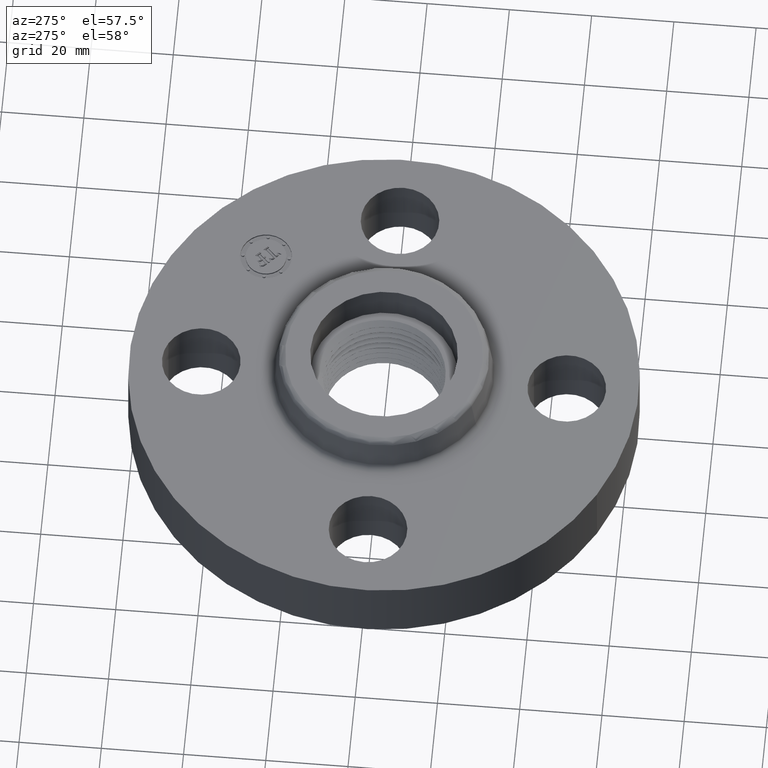
[diagram: clean part render]
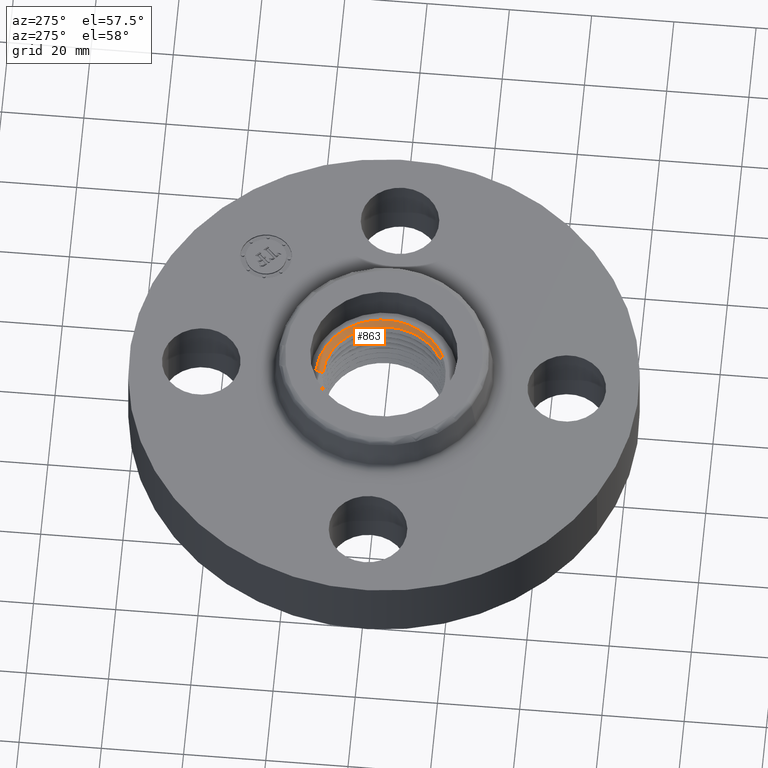
[diagram: same view with one face highlighted and labeled with its STEP entity id]
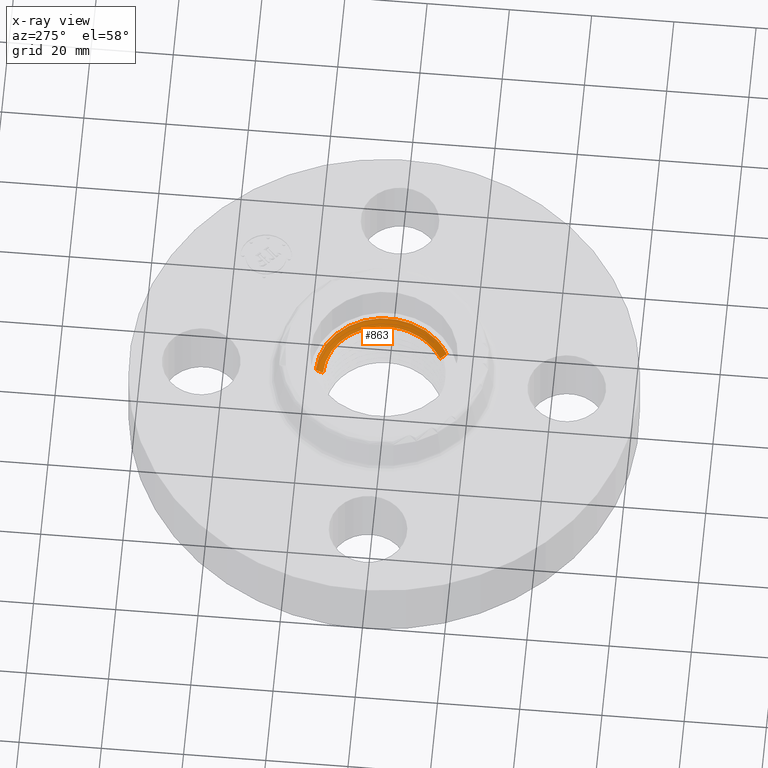
[diagram: x-ray of the same camera — body ghosted, the highlighted face saturated]
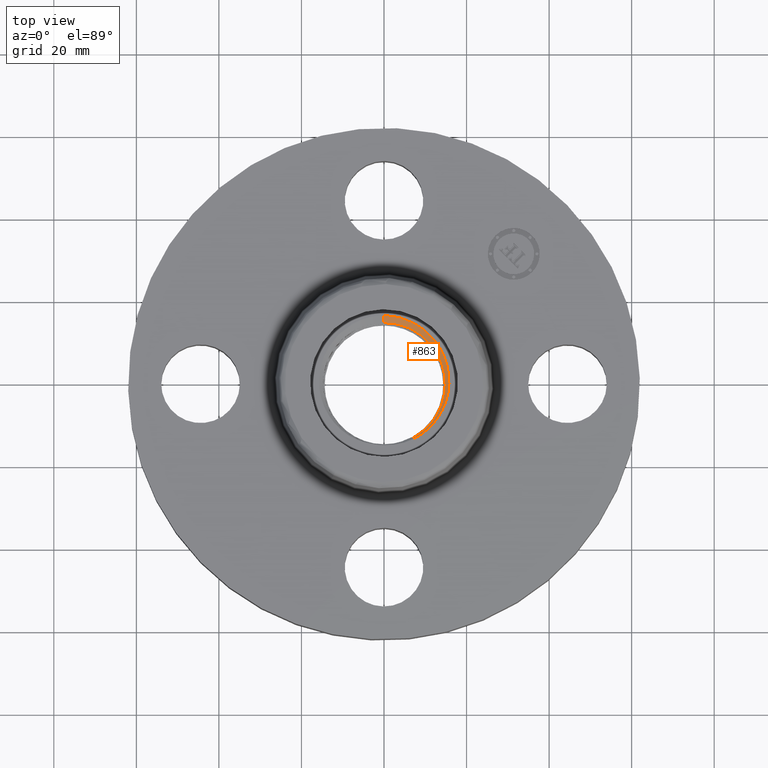
[diagram: same view with one face highlighted and labeled with its STEP entity id]
A machine part, auxiliary view. The second image highlights one B-rep face of the part: STEP entity #863.
The next image is the same camera in x-ray: the body ghosted, the highlighted face saturated — about 0% of this face is hidden behind the body in this view.
A second angle (top view) of the same face is appended — the face is thin or edge-on in the first view.
In plain terms, the highlighted face is a freeform B-spline surface patch.
Its self-contained STEP definition (entity closure, byte-faithful):
#786=CARTESIAN_POINT('Control Point',(1.7882485031E-006,0.583158274545,0.647608144924)) ;
#787=CARTESIAN_POINT('Control Point',(2.0057407968E-006,0.654083019122,0.6889129946)) ;
#788=CARTESIAN_POINT('Control Point',(0.154010184178,0.583043528837,0.643951373293)) ;
#789=CARTESIAN_POINT('Control Point',(0.172741377425,0.653968215979,0.685256222978)) ;
#790=CARTESIAN_POINT('Control Point',(0.307978416332,0.532087950533,0.640293758503)) ;
#791=CARTESIAN_POINT('Control Point',(0.345444876695,0.596829101794,0.681598611698)) ;
#792=CARTESIAN_POINT('Control Point',(0.438923333474,0.430330909064,0.636647632857)) ;
#793=CARTESIAN_POINT('Control Point',(0.492334131538,0.482703616254,0.677952482528)) ;
#794=CARTESIAN_POINT('Control Point',(0.613693396991,0.157057135218,0.629329033217)) ;
#795=CARTESIAN_POINT('Control Point',(0.688403178811,0.176185318947,0.670633882879)) ;
#796=CARTESIAN_POINT('Control Point',(0.591242859824,-0.166537871567,0.622007052538)) ;
#797=CARTESIAN_POINT('Control Point',(0.663250321147,-0.18681581726,0.663311902191)) ;
#798=CARTESIAN_POINT('Control Point',(0.525040124275,-0.318599914914,0.618357585847)) ;
#799=CARTESIAN_POINT('Control Point',(0.588999554515,-0.357406151432,0.659662427091)) ;
#800=CARTESIAN_POINT('Control Point',(0.414227256438,-0.437039922541,0.614694912561)) ;
#801=CARTESIAN_POINT('Control Point',(0.46469722499,-0.490286976568,0.655999762199)) ;
#802=CARTESIAN_POINT('Control Point',(0.279032984142,-0.51076643763,0.611031384911)) ;
#803=CARTESIAN_POINT('Control Point',(0.313034348923,-0.573009723132,0.652336234541)) ;
#805=CARTESIAN_POINT('Control Point',(0.279668067106,-0.511929027735,0.611802883541)) ;
#806=CARTESIAN_POINT('Control Point',(0.313034348923,-0.573009723132,0.652336234541)) ;
#807=CARTESIAN_POINT('Vertex',(0.313034348923,-0.573009723132,0.652336234541)) ;
#809=CARTESIAN_POINT('Vertex',(0.279668067106,-0.511929027735,0.611802883541)) ;
#813=CARTESIAN_POINT('Control Point',(2.0057407968E-006,0.654083019122,0.6889129946)) ;
#814=CARTESIAN_POINT('Control Point',(0.172741377425,0.653968215979,0.685256222978)) ;
#815=CARTESIAN_POINT('Control Point',(0.345444876695,0.596829101794,0.681598611698)) ;
#816=CARTESIAN_POINT('Control Point',(0.492334131538,0.482703616254,0.677952482528)) ;
#817=CARTESIAN_POINT('Control Point',(0.688403178811,0.176185318947,0.670633882879)) ;
#818=CARTESIAN_POINT('Control Point',(0.663250321147,-0.18681581726,0.663311902191)) ;
#819=CARTESIAN_POINT('Control Point',(0.588999554515,-0.357406151432,0.659662427091)) ;
#820=CARTESIAN_POINT('Control Point',(0.46469722499,-0.490286976568,0.655999762199)) ;
#821=CARTESIAN_POINT('Control Point',(0.313034348923,-0.573009723132,0.652336234541)) ;
#822=CARTESIAN_POINT('Vertex',(2.0057407977E-006,0.654083019122,0.6889129946)) ;
#826=CARTESIAN_POINT('Control Point',(1.79231085911E-006,0.584483018338,0.648379643553)) ;
#827=CARTESIAN_POINT('Control Point',(2.00574079673E-006,0.654083019122,0.6889129946)) ;
#828=CARTESIAN_POINT('Vertex',(1.79231085922E-006,0.584483018338,0.648379643553)) ;
#832=CARTESIAN_POINT('Control Point',(1.79231085918E-006,0.584483018338,0.648379643553)) ;
#833=CARTESIAN_POINT('Control Point',(0.030694421852,0.584460202064,0.64765253028)) ;
#834=CARTESIAN_POINT('Control Point',(0.0613847874619,0.582422704159,0.646925399929)) ;
#835=CARTESIAN_POINT('Control Point',(0.0921173588627,0.57836184876,0.646192992763)) ;
#836=CARTESIAN_POINT('Control Point',(0.153064310425,0.566098095179,0.644723009283)) ;
#837=CARTESIAN_POINT('Control Point',(0.211842666918,0.54589593111,0.643253329371)) ;
#838=CARTESIAN_POINT('Control Point',(0.240402245574,0.533880437034,0.642521225874)) ;
#839=CARTESIAN_POINT('Control Point',(0.323195396795,0.492522085574,0.640332993462)) ;
#840=CARTESIAN_POINT('Control Point',(0.396768058286,0.435421162352,0.638144802533)) ;
#841=CARTESIAN_POINT('Control Point',(0.440563899039,0.390983005726,0.636682662447)) ;
#842=CARTESIAN_POINT('Control Point',(0.515423806657,0.291562001671,0.633757572106)) ;
#843=CARTESIAN_POINT('Control Point',(0.56192283146,0.176082008942,0.630831825483)) ;
#844=CARTESIAN_POINT('Control Point',(0.577370178054,0.115549237587,0.629367777417)) ;
#845=CARTESIAN_POINT('Control Point',(0.591893801638,-0.00810972818698,0.626439646865)) ;
#846=CARTESIAN_POINT('Control Point',(0.573813858491,-0.131237647533,0.62351322276)) ;
#847=CARTESIAN_POINT('Control Point',(0.556651022524,-0.191230813881,0.62205075969)) ;
#848=CARTESIAN_POINT('Control Point',(0.519378347723,-0.276653367107,0.619858567191)) ;
#849=CARTESIAN_POINT('Control Point',(0.466443234983,-0.352634266797,0.617665735085)) ;
#850=CARTESIAN_POINT('Control Point',(0.447117357961,-0.376828327133,0.616933080806)) ;
#851=CARTESIAN_POINT('Control Point',(0.40525038951,-0.422599576407,0.615464360589)) ;
#852=CARTESIAN_POINT('Control Point',(0.35769946904,-0.462447925832,0.613995344787)) ;
#853=CARTESIAN_POINT('Control Point',(0.332682187611,-0.480711291277,0.613262394486)) ;
#854=CARTESIAN_POINT('Control Point',(0.306659663906,-0.497209437365,0.612532648081)) ;
#855=CARTESIAN_POINT('Control Point',(0.279668094357,-0.511929012875,0.611802884278)) ;
#858=ORIENTED_EDGE('',*,*,#811,.F.) ;
#859=ORIENTED_EDGE('',*,*,#824,.F.) ;
#860=ORIENTED_EDGE('',*,*,#830,.T.) ;
#861=ORIENTED_EDGE('',*,*,#856,.T.) ;
#863=ADVANCED_FACE('PartBody',(#862),#785,.T.) ;
#804=B_SPLINE_CURVE_WITH_KNOTS('',1,(#805,#806),.UNSPECIFIED.,.F.,.U.,(2,2),(-1.00342181811,1.04236057529),.UNSPECIFIED.) ;
#812=B_SPLINE_CURVE_WITH_KNOTS('',5,(#813,#814,#815,#816,#817,#818,#819,#820,#821),.UNSPECIFIED.,.F.,.U.,(6,3,6),(0.,20.8092288698,41.6185662106),.UNSPECIFIED.) ;
#825=B_SPLINE_CURVE_WITH_KNOTS('',1,(#826,#827),.UNSPECIFIED.,.F.,.U.,(2,2),(-1.00342181816,1.04236057529),.UNSPECIFIED.) ;
#831=B_SPLINE_CURVE_WITH_KNOTS('',5,(#832,#833,#834,#835,#836,#837,#838,#839,#840,#841,#842,#843,#844,#845,#846,#847,#848,#849,#850,#851,#852,#853,#854,#855),.UNSPECIFIED.,.F.,.U.,(6,3,3,3,3,3,3,6),(0.,5.75809236689,11.5161847338,23.0958803146,34.6824961505,46.2679806079,52.0415775992,57.8151745905),.UNSPECIFIED.) ;
#785=B_SPLINE_SURFACE_WITH_KNOTS('',5,1,((#786,#787),(#788,#789),(#790,#791),(#792,#793),(#794,#795),(#796,#797),(#798,#799),(#800,#801),(#802,#803)),.UNSPECIFIED.,.F.,.F.,.U.,(6,3,6),(2,2),(0.,20.8092288698,41.6185662106),(-1.04236057529,1.04236057529),.UNSPECIFIED.) ;
#811=EDGE_CURVE('',#808,#810,#804,.F.) ;
#824=EDGE_CURVE('',#823,#808,#812,.T.) ;
#830=EDGE_CURVE('',#823,#829,#825,.F.) ;
#856=EDGE_CURVE('',#829,#810,#831,.T.) ;
#857=EDGE_LOOP('',(#858,#859,#860,#861)) ;
#862=FACE_OUTER_BOUND('',#857,.T.) ;
#808=VERTEX_POINT('',#807) ;
#810=VERTEX_POINT('',#809) ;
#823=VERTEX_POINT('',#822) ;
#829=VERTEX_POINT('',#828) ;